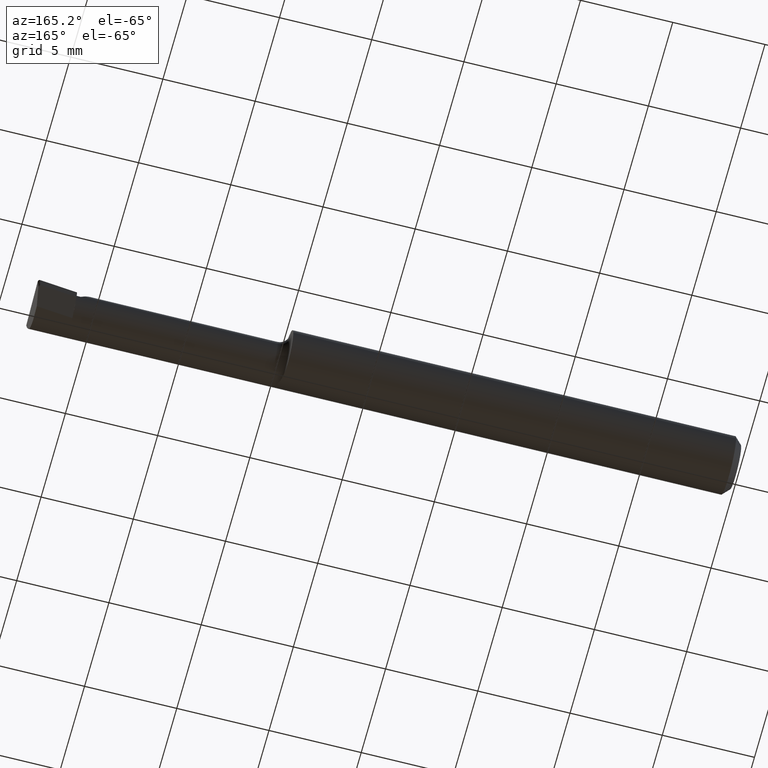
[diagram: clean part render]
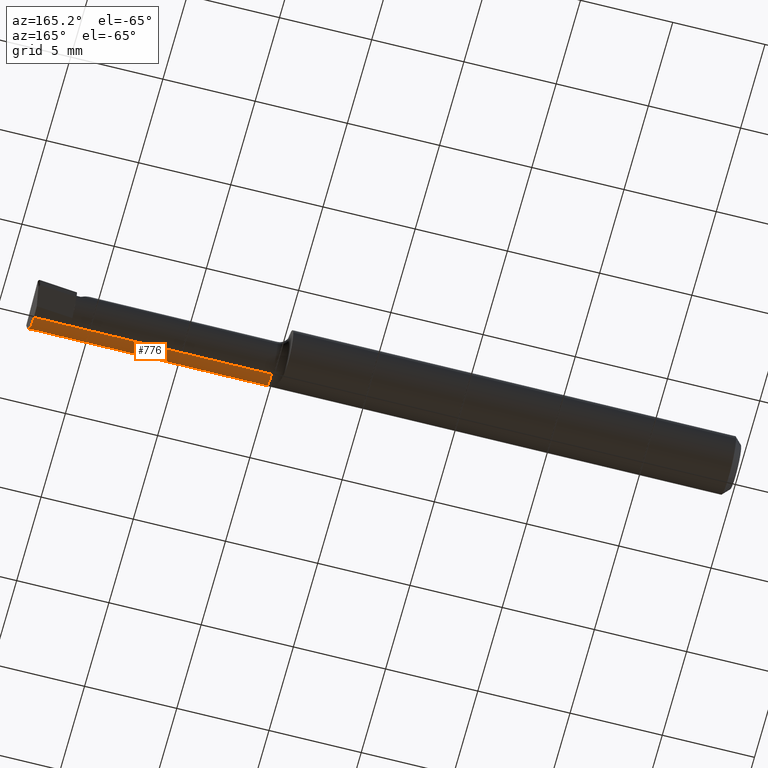
[diagram: same view with one face highlighted and labeled with its STEP entity id]
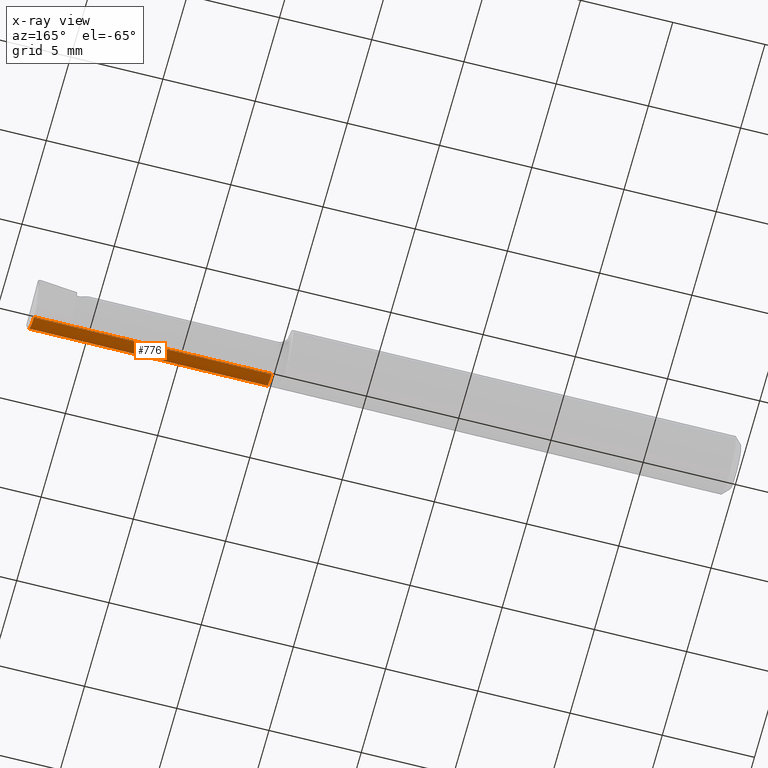
[diagram: x-ray of the same camera — body ghosted, the highlighted face saturated]
A machine part, auxiliary view. The second image highlights one B-rep face of the part: STEP entity #776.
The next image is the same camera in x-ray: the body ghosted, the highlighted face saturated — about 0% of this face is hidden behind the body in this view.
In plain terms, the highlighted cylindrical surface (edge-blend (fillet) strip) has radius 1.2205 mm, axis along (-1, -0, -0).
Its self-contained STEP definition (entity closure, byte-faithful):
#9 = ORIENTED_EDGE ( 'NONE', *, *, #536, .F. ) ;
#31 = CARTESIAN_POINT ( 'NONE',  ( 1.415000000000000036, -0.01839999999999999969, -0.04804999999999998855 ) ) ;
#32 = CIRCLE ( 'NONE', #704, 0.04804999999999994692 ) ;
#45 = CARTESIAN_POINT ( 'NONE',  ( 1.500000000000000222, -0.01839999999999999969, -0.04804999999999998855 ) ) ;
#48 =( BOUNDED_CURVE ( )  B_SPLINE_CURVE ( 3, ( #670, #602, #367, #394 ),
 .UNSPECIFIED., .F., .T. ) 
 B_SPLINE_CURVE_WITH_KNOTS ( ( 4, 4 ),
 ( 5.715941252449188603, 6.493234751459777243 ),
 .UNSPECIFIED. ) 
 CURVE ( )  GEOMETRIC_REPRESENTATION_ITEM ( )  RATIONAL_B_SPLINE_CURVE ( ( 1.000000000000000000, 0.9502818019828906948, 0.9502818019828906948, 1.000000000000000000 ) ) 
 REPRESENTATION_ITEM ( '' )  );
#72 = VERTEX_POINT ( 'NONE', #632 ) ;
#76 = ORIENTED_EDGE ( 'NONE', *, *, #421, .F. ) ;
#100 = DIRECTION ( 'NONE',  ( 0.0000000000000000000, 0.0000000000000000000, 1.000000000000000000 ) ) ;
#102 = VERTEX_POINT ( 'NONE', #643 ) ;
#129 = DIRECTION ( 'NONE',  ( -1.000000000000000000, -0.0000000000000000000, -0.0000000000000000000 ) ) ;
#152 = EDGE_CURVE ( 'NONE', #397, #454, #32, .T. ) ;
#153 = CARTESIAN_POINT ( 'NONE',  ( 1.199999999999999956, -0.05210000000000007681, -0.03425072991922935295 ) ) ;
#188 = AXIS2_PLACEMENT_3D ( 'NONE', #198, #652, #202 ) ;
#198 = CARTESIAN_POINT ( 'NONE',  ( 0.0000000000000000000, -0.01839999999999999969, 0.0000000000000000000 ) ) ;
#202 = DIRECTION ( 'NONE',  ( 0.0000000000000000000, 0.0000000000000000000, 1.000000000000000000 ) ) ;
#211 = DIRECTION ( 'NONE',  ( -1.000000000000000000, -0.0000000000000000000, -0.0000000000000000000 ) ) ;
#231 = CARTESIAN_POINT ( 'NONE',  ( 0.9850000000000000977, -0.01839999999999999969, 0.0000000000000000000 ) ) ;
#261 = VERTEX_POINT ( 'NONE', #31 ) ;
#269 = ORIENTED_EDGE ( 'NONE', *, *, #379, .F. ) ;
#294 = ORIENTED_EDGE ( 'NONE', *, *, #152, .F. ) ;
#295 = CYLINDRICAL_SURFACE ( 'NONE', #188, 0.04804999999999997468 ) ;
#318 = CARTESIAN_POINT ( 'NONE',  ( 0.0000000000000000000, -0.01839999999999999275, -0.04804999999999997468 ) ) ;
#367 = CARTESIAN_POINT ( 'NONE',  ( 1.492086480543131755, -0.03117368152160948994, -0.04804999999999997468 ) ) ;
#374 = CARTESIAN_POINT ( 'NONE',  ( 0.9850000000000000977, -0.05210000000000011150, -0.03425072991922927662 ) ) ;
#375 = LINE ( 'NONE', #318, #569 ) ;
#379 = EDGE_CURVE ( 'NONE', #72, #102, #48, .T. ) ;
#394 = CARTESIAN_POINT ( 'NONE',  ( 1.492420971165606458, -0.01839999999999999969, -0.04804999999999998855 ) ) ;
#395 = VECTOR ( 'NONE', #696, 39.37007874015748143 ) ;
#397 = VERTEX_POINT ( 'NONE', #529 ) ;
#421 = EDGE_CURVE ( 'NONE', #261, #397, #375, .T. ) ;
#428 = DIRECTION ( 'NONE',  ( -1.000000000000000000, 5.691349986800549142E-18, -0.0000000000000000000 ) ) ;
#454 = VERTEX_POINT ( 'NONE', #374 ) ;
#466 = LINE ( 'NONE', #45, #635 ) ;
#478 = ORIENTED_EDGE ( 'NONE', *, *, #664, .T. ) ;
#529 = CARTESIAN_POINT ( 'NONE',  ( 0.9850000000000000977, -0.01839999999999999275, -0.04804999999999994692 ) ) ;
#536 = EDGE_CURVE ( 'NONE', #102, #261, #466, .T. ) ;
#562 = EDGE_LOOP ( 'NONE', ( #76, #9, #269, #478, #294 ) ) ;
#569 = VECTOR ( 'NONE', #129, 39.37007874015748143 ) ;
#602 = CARTESIAN_POINT ( 'NONE',  ( 1.492371467082626468, -0.04299473640227069460, -0.04320958667840189144 ) ) ;
#632 = CARTESIAN_POINT ( 'NONE',  ( 1.493233423732482024, -0.05210000000000007681, -0.03425072991922935295 ) ) ;
#635 = VECTOR ( 'NONE', #428, 39.37007874015748143 ) ;
#643 = CARTESIAN_POINT ( 'NONE',  ( 1.492420971165606458, -0.01839999999999999969, -0.04804999999999998855 ) ) ;
#647 = FACE_OUTER_BOUND ( 'NONE', #562, .T. ) ;
#652 = DIRECTION ( 'NONE',  ( -1.000000000000000000, -0.0000000000000000000, -0.0000000000000000000 ) ) ;
#664 = EDGE_CURVE ( 'NONE', #72, #454, #732, .T. ) ;
#670 = CARTESIAN_POINT ( 'NONE',  ( 1.493233423732482024, -0.05210000000000007681, -0.03425072991922935295 ) ) ;
#696 = DIRECTION ( 'NONE',  ( -1.000000000000000000, -0.0000000000000000000, -0.0000000000000000000 ) ) ;
#704 = AXIS2_PLACEMENT_3D ( 'NONE', #231, #211, #100 ) ;
#732 = LINE ( 'NONE', #153, #395 ) ;
#776 = ADVANCED_FACE ( 'NONE', ( #647 ), #295, .T. ) ;